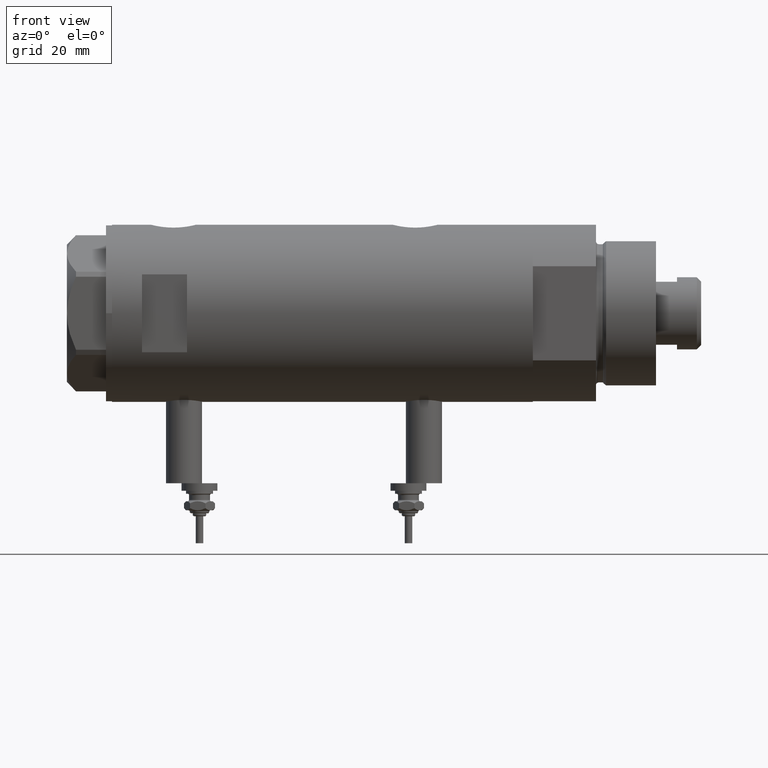
[diagram: clean part render]
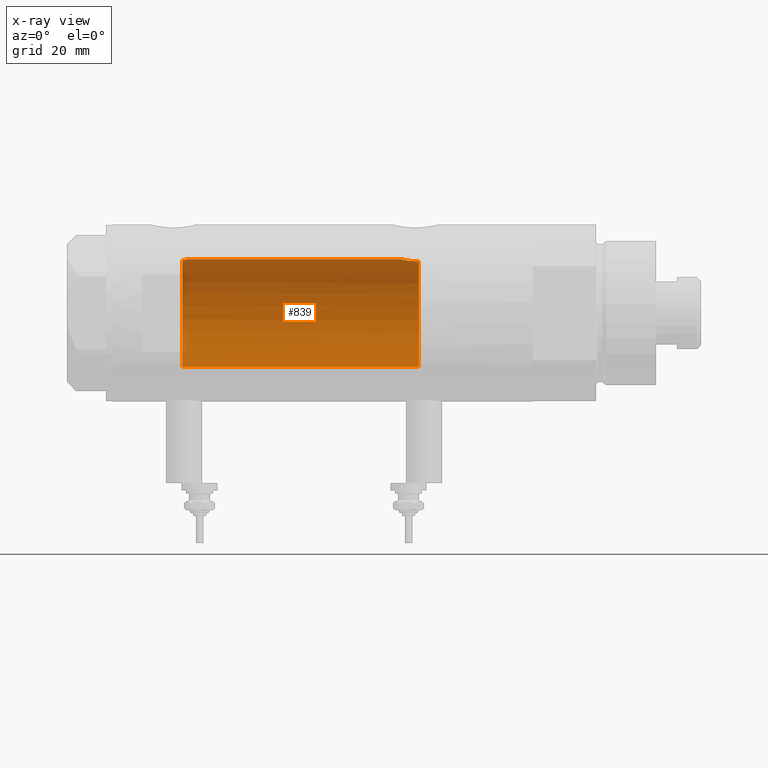
[diagram: x-ray — body ghosted, one internal face saturated and labeled with its STEP entity id]
A machine part, front view, then the same camera in x-ray: the body is ghosted and one INTERNAL B-rep face — a face not visible from any outside direction — is saturated and labeled: STEP entity #839.
In plain terms, the highlighted cylindrical surface (partial cylindrical patch) has radius 18 mm, axis along (1, 0, -0).
Its self-contained STEP definition (entity closure, byte-faithful):
#53 = CARTESIAN_POINT ( 'NONE',  ( 17.53642083926971651, 4.065376572064631766, -28.20260027543615777 ) ) ;
#91 = CARTESIAN_POINT ( 'NONE',  ( 18.00000000000000000, 5.958021437579254357E-16, -26.03499999999998948 ) ) ;
#108 = CARTESIAN_POINT ( 'NONE',  ( 17.35631194664785681, 4.771042759406570077, -29.89667763205954287 ) ) ;
#134 = CARTESIAN_POINT ( 'NONE',  ( 17.34085862114803689, 4.826483754267692383, -30.26145238513612057 ) ) ;
#206 = CARTESIAN_POINT ( 'NONE',  ( 0.000000000000000000, 0.000000000000000000, -32.09999999999998721 ) ) ;
#376 = CARTESIAN_POINT ( 'NONE',  ( 17.83158514913445103, 2.461498934476296085, 45.39965995681277633 ) ) ;
#395 = CARTESIAN_POINT ( 'NONE',  ( -18.00000000000000000, 0.000000000000000000, 70.09999999999999432 ) ) ;
#486 = AXIS2_PLACEMENT_3D ( 'NONE', #206, #602, #1599 ) ;
#598 = CARTESIAN_POINT ( 'NONE',  ( 17.33118376015917761, 4.861110225087390546, -30.63112109378173642 ) ) ;
#602 = DIRECTION ( 'NONE',  ( 0.000000000000000000, 0.000000000000000000, -1.000000000000000000 ) ) ;
#636 = DIRECTION ( 'NONE',  ( -0.000000000000000000, -0.000000000000000000, -1.000000000000000000 ) ) ;
#734 = CARTESIAN_POINT ( 'NONE',  ( 17.94405978035183935, 1.463580074031385569, -26.24553017623723861 ) ) ;
#839 = ADVANCED_FACE ( 'NONE', ( #2134 ), #3513, .F. ) ;
#943 = CARTESIAN_POINT ( 'NONE',  ( 17.71174132276681590, 3.211689381115077513, -27.24121359250870000 ) ) ;
#1062 = EDGE_CURVE ( 'NONE', #2163, #1917, #5608, .T. ) ;
#1160 = CARTESIAN_POINT ( 'NONE',  ( 17.58783030962034388, 3.829911878881825160, 46.59999999999998721 ) ) ;
#1189 = ORIENTED_EDGE ( 'NONE', *, *, #5472, .F. ) ;
#1251 = CARTESIAN_POINT ( 'NONE',  ( 17.89217382667230538, 1.974183297225218015, 45.14981302266163965 ) ) ;
#1262 = ORIENTED_EDGE ( 'NONE', *, *, #2716, .T. ) ;
#1277 = CARTESIAN_POINT ( 'NONE',  ( 17.99716691696285409, 0.3685254503903831469, -26.04545042928659981 ) ) ;
#1422 = ORIENTED_EDGE ( 'NONE', *, *, #1062, .F. ) ;
#1438 = EDGE_LOOP ( 'NONE', ( #1422, #4820, #3754, #1697, #1262, #1189 ) ) ;
#1599 = DIRECTION ( 'NONE',  ( -1.000000000000000000, 0.000000000000000000, 0.000000000000000000 ) ) ;
#1684 = EDGE_CURVE ( 'NONE', #4453, #5635, #3106, .T. ) ;
#1688 = VERTEX_POINT ( 'NONE', #5865 ) ;
#1697 = ORIENTED_EDGE ( 'NONE', *, *, #1684, .T. ) ;
#1917 = VERTEX_POINT ( 'NONE', #91 ) ;
#2014 = CARTESIAN_POINT ( 'NONE',  ( 17.32928165965088141, 4.867855194001449171, -30.81899018256649114 ) ) ;
#2076 = CARTESIAN_POINT ( 'NONE',  ( 17.99999999999999645, 0.1844036484100888829, -26.03499999999998238 ) ) ;
#2111 = EDGE_CURVE ( 'NONE', #5009, #2163, #4607, .T. ) ;
#2134 = FACE_OUTER_BOUND ( 'NONE', #1438, .T. ) ;
#2163 = VERTEX_POINT ( 'NONE', #4381 ) ;
#2412 = CARTESIAN_POINT ( 'NONE',  ( 17.34671983132639284, 4.806279138776324622, -31.74012329268312271 ) ) ;
#2482 = CARTESIAN_POINT ( 'NONE',  ( 17.33262691996380767, 4.855935766715060886, -31.37488940890202116 ) ) ;
#2552 = DIRECTION ( 'NONE',  ( 0.000000000000000000, 0.000000000000000000, 1.000000000000000000 ) ) ;
#2585 = CARTESIAN_POINT ( 'NONE',  ( 17.78478726694684298, 2.779555353823086161, -26.90297143050465323 ) ) ;
#2619 = CARTESIAN_POINT ( 'NONE',  ( 17.63704841537101231, 3.603891093161669890, 46.31145343596539732 ) ) ;
#2716 = EDGE_CURVE ( 'NONE', #5635, #1688, #5367, .T. ) ;
#2747 = B_SPLINE_CURVE_WITH_KNOTS ( 'NONE', 3,
 ( #5343, #2076, #1277, #3003, #3457, #734, #3948, #3485, #3033, #2585, #4417, #943, #5592, #3750, #5151, #53, #2872, #3350, #4697, #5183, #108, #134, #598, #2014, #2482, #2412, #5671 ),
 .UNSPECIFIED., .F., .F.,
 ( 4, 2, 2, 2, 2, 2, 2, 2, 2, 2, 1, 2, 2, 4 ),
 ( 0.01528157848519460724, 0.01583467956029641077, 0.01638778063539821778, 0.01749398278560182138, 0.01804708386070362491, 0.01860018493580542845, 0.01915328601090723198, 0.01970638708600903552, 0.02081258923621265300, 0.02136569031131445653, 0.02191879138641626354, 0.02247189246151807054, 0.02302499353661987755, 0.02413119568682350197 ),
 .UNSPECIFIED. ) ;
#2872 = CARTESIAN_POINT ( 'NONE',  ( 17.49030773641652914, 4.256160900234553957, -28.51469509681785652 ) ) ;
#3003 = CARTESIAN_POINT ( 'NONE',  ( 17.98587882862718601, 0.7362002489460850452, -26.08746722239206406 ) ) ;
#3010 = CARTESIAN_POINT ( 'NONE',  ( -18.00000000000000000, 0.000000000000000000, 46.59999999999999432 ) ) ;
#3033 = CARTESIAN_POINT ( 'NONE',  ( 17.83051055968251219, 2.469307448774137104, -26.70420614498791778 ) ) ;
#3035 = CARTESIAN_POINT ( 'NONE',  ( 17.58783030962034388, 3.829911878881825160, 46.59999999999998721 ) ) ;
#3070 = CARTESIAN_POINT ( 'NONE',  ( 17.91007218376326193, 1.805463612197654166, 45.07866376881659676 ) ) ;
#3106 = LINE ( 'NONE', #395, #5058 ) ;
#3350 = CARTESIAN_POINT ( 'NONE',  ( 17.43128843254318028, 4.489613141718952427, -29.01700003713170162 ) ) ;
#3364 = CARTESIAN_POINT ( 'NONE',  ( 18.00000000000000000, 2.204364238465235033E-15, 70.09999999999999432 ) ) ;
#3457 = CARTESIAN_POINT ( 'NONE',  ( 17.97733715731490989, 0.9209699998971184742, -26.11935966604423243 ) ) ;
#3485 = CARTESIAN_POINT ( 'NONE',  ( 17.85236636886077832, 2.306694554785103435, -26.61264586133006560 ) ) ;
#3510 = AXIS2_PLACEMENT_3D ( 'NONE', #4833, #2552, #4472 ) ;
#3513 = CYLINDRICAL_SURFACE ( 'NONE', #5919, 18.00000000000000000 ) ;
#3549 = CARTESIAN_POINT ( 'NONE',  ( 17.98843015915091570, 0.7391836159806497442, 44.77731130524778536 ) ) ;
#3750 = CARTESIAN_POINT ( 'NONE',  ( 17.63589737371339083, 3.604488512479873119, -27.62742655266249514 ) ) ;
#3754 = ORIENTED_EDGE ( 'NONE', *, *, #5116, .T. ) ;
#3948 = CARTESIAN_POINT ( 'NONE',  ( 17.91189082287941403, 1.809824880389074186, -26.36912370284670004 ) ) ;
#3971 = CARTESIAN_POINT ( 'NONE',  ( 17.78617492856930227, 2.770629413254892537, 45.59682049650071178 ) ) ;
#3996 = CARTESIAN_POINT ( 'NONE',  ( 17.95540531162507136, 1.279032093992328756, 44.90250861430337892 ) ) ;
#4049 = DIRECTION ( 'NONE',  ( -0.000000000000000000, -0.000000000000000000, -1.000000000000000000 ) ) ;
#4381 = CARTESIAN_POINT ( 'NONE',  ( 18.00000000000000000, 0.000000000000000000, 44.73499999999999233 ) ) ;
#4389 = DIRECTION ( 'NONE',  ( -1.000000000000000000, 0.000000000000000000, 0.000000000000000000 ) ) ;
#4417 = CARTESIAN_POINT ( 'NONE',  ( 17.76085061188610581, 2.927954048074872251, -27.01043039029092441 ) ) ;
#4450 = CARTESIAN_POINT ( 'NONE',  ( 17.68814035493779357, 3.348626323852638365, 46.05183600219630335 ) ) ;
#4453 = VERTEX_POINT ( 'NONE', #3010 ) ;
#4472 = DIRECTION ( 'NONE',  ( 1.000000000000000000, 0.000000000000000000, 0.000000000000000000 ) ) ;
#4477 = CARTESIAN_POINT ( 'NONE',  ( 17.76196254920472128, 2.921230608637938264, 45.70535341986154521 ) ) ;
#4607 = B_SPLINE_CURVE_WITH_KNOTS ( 'NONE', 3,
 ( #3035, #2619, #4450, #4477, #3971, #376, #5794, #1251, #3070, #4896, #3996, #3549, #5375, #4923 ),
 .UNSPECIFIED., .F., .F.,
 ( 4, 2, 2, 2, 2, 2, 4 ),
 ( 0.02614985543880328500, 0.02725214354003946404, 0.02780328759065755356, 0.02835443164127564308, 0.02890557569189372913, 0.02945671974251181865, 0.03055900784374799770 ),
 .UNSPECIFIED. ) ;
#4697 = CARTESIAN_POINT ( 'NONE',  ( 17.41328271218089796, 4.558641711475907243, -29.19087254718660418 ) ) ;
#4820 = ORIENTED_EDGE ( 'NONE', *, *, #2111, .F. ) ;
#4833 = CARTESIAN_POINT ( 'NONE',  ( 0.000000000000000000, 0.000000000000000000, 46.59999999999999432 ) ) ;
#4853 = CARTESIAN_POINT ( 'NONE',  ( -18.00000000000000000, 0.000000000000000000, -32.09999999999998721 ) ) ;
#4867 = VECTOR ( 'NONE', #636, 1000.000000000000000 ) ;
#4896 = CARTESIAN_POINT ( 'NONE',  ( 17.94167814235965608, 1.458276351914867375, 44.95504464479716233 ) ) ;
#4923 = CARTESIAN_POINT ( 'NONE',  ( 18.00000000000000000, 0.000000000000000000, 44.73499999999999233 ) ) ;
#5009 = VERTEX_POINT ( 'NONE', #1160 ) ;
#5058 = VECTOR ( 'NONE', #4049, 1000.000000000000000 ) ;
#5116 = EDGE_CURVE ( 'NONE', #5009, #4453, #5324, .T. ) ;
#5151 = CARTESIAN_POINT ( 'NONE',  ( 17.61032289555864239, 3.726910670425180427, -27.76756985850230564 ) ) ;
#5183 = CARTESIAN_POINT ( 'NONE',  ( 17.38237957915197285, 4.675094569549008483, -29.54138980228257338 ) ) ;
#5324 = CIRCLE ( 'NONE', #3510, 18.00000000000000000 ) ;
#5343 = CARTESIAN_POINT ( 'NONE',  ( 18.00000000000000000, 5.958021437579254357E-16, -26.03499999999998948 ) ) ;
#5367 = CIRCLE ( 'NONE', #486, 18.00000000000000000 ) ;
#5375 = CARTESIAN_POINT ( 'NONE',  ( 18.00000000000001066, 0.3728474842072352358, 44.73499999999999233 ) ) ;
#5472 = EDGE_CURVE ( 'NONE', #1917, #1688, #2747, .T. ) ;
#5592 = CARTESIAN_POINT ( 'NONE',  ( 17.68656644271517209, 3.347025706529860312, -27.36453774950910045 ) ) ;
#5608 = LINE ( 'NONE', #3364, #4867 ) ;
#5635 = VERTEX_POINT ( 'NONE', #4853 ) ;
#5671 = CARTESIAN_POINT ( 'NONE',  ( 17.37157951943346745, 4.714681855650494136, -32.09999999999999432 ) ) ;
#5711 = DIRECTION ( 'NONE',  ( -0.000000000000000000, -0.000000000000000000, -1.000000000000000000 ) ) ;
#5745 = CARTESIAN_POINT ( 'NONE',  ( 0.000000000000000000, 0.000000000000000000, 70.09999999999999432 ) ) ;
#5794 = CARTESIAN_POINT ( 'NONE',  ( 17.85293122918850273, 2.302201220737755794, 45.31031080804816469 ) ) ;
#5865 = CARTESIAN_POINT ( 'NONE',  ( 17.37157951943346745, 4.714681855650494136, -32.09999999999999432 ) ) ;
#5919 = AXIS2_PLACEMENT_3D ( 'NONE', #5745, #5711, #4389 ) ;